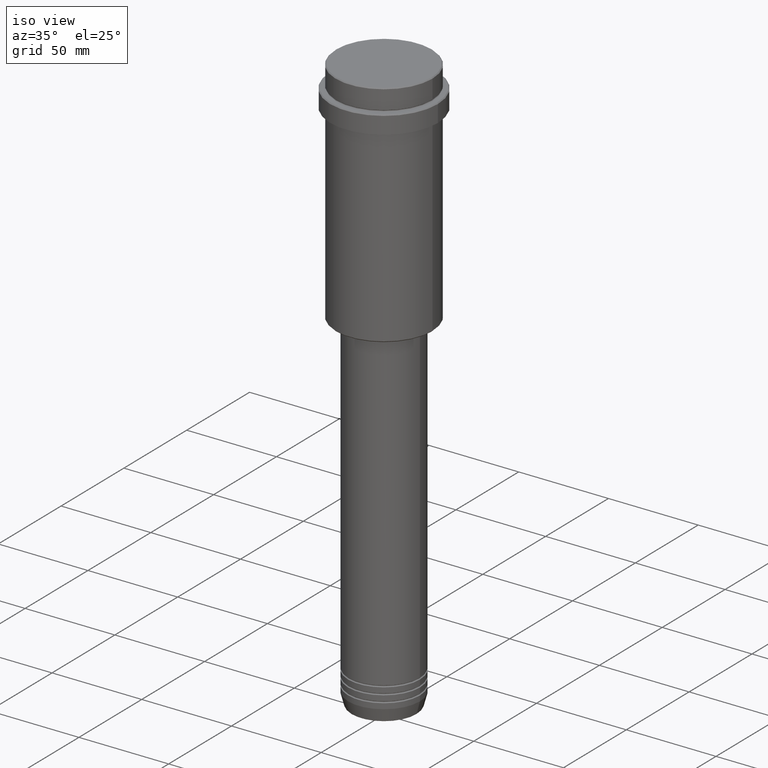
[diagram: clean part render]
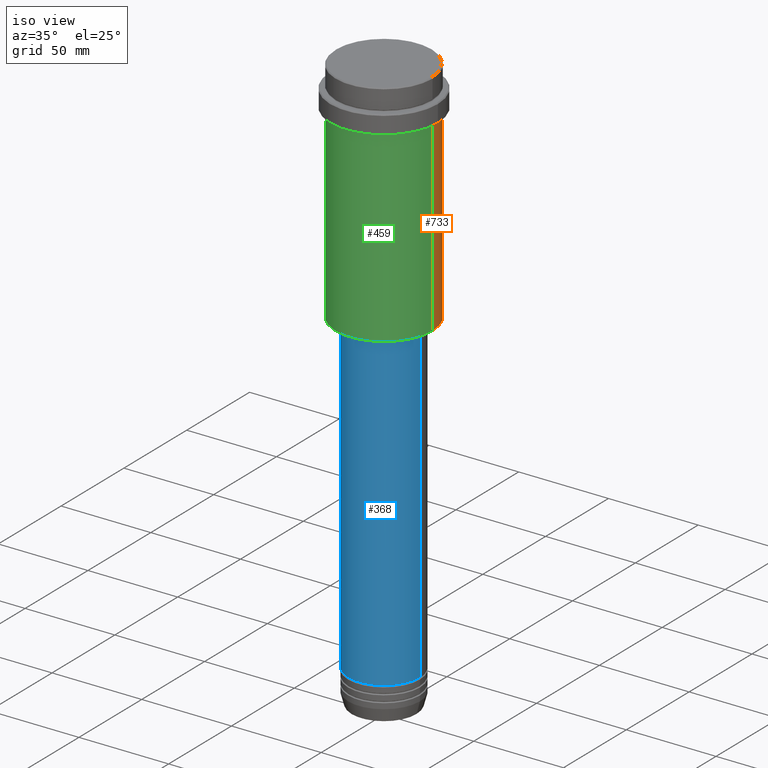
[diagram: same view with three faces highlighted in distinct colors, each labeled with its STEP entity id]
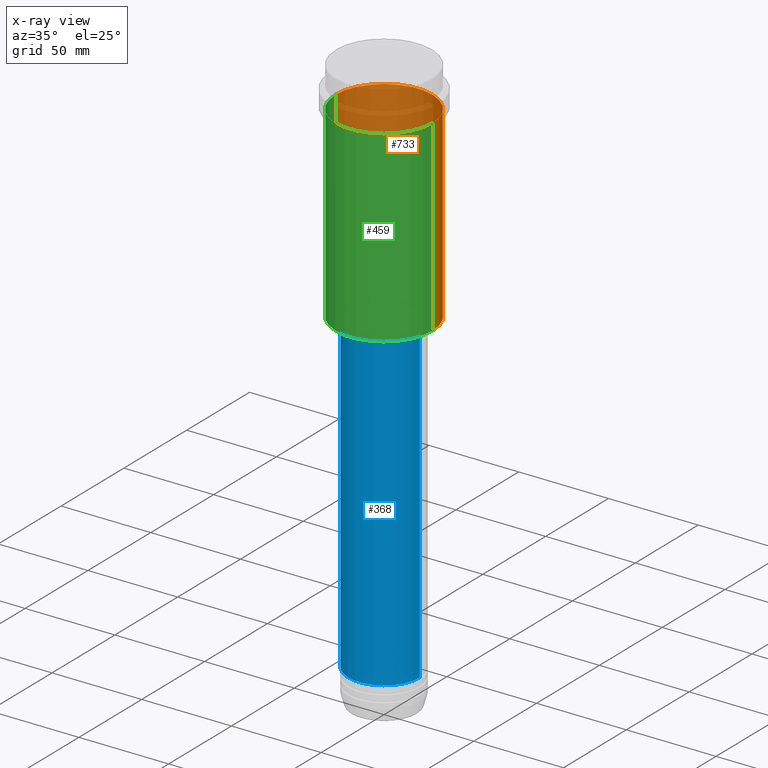
[diagram: x-ray of the same camera — body ghosted, the three highlighted faces saturated]
A machine part, iso view with three faces highlighted in distinct colors.
The next image is the same camera in x-ray (body ghosted, the three faces saturated) — at least one of them is partly hidden behind the body in this view.
Their STEP definitions:

[orange] entity #733 — the highlighted cylindrical surface (partial cylindrical patch) has radius 27 mm, axis along (-0, -0, 1).
#35 = DIRECTION ( 'NONE',  ( -0.000000000000000000, -0.000000000000000000, 1.000000000000000000 ) ) ;
#41 = VERTEX_POINT ( 'NONE', #1177 ) ;
#66 = CARTESIAN_POINT ( 'NONE',  ( 0.000000000000000000, 0.000000000000000000, -127.4999999999999432 ) ) ;
#77 = EDGE_CURVE ( 'NONE', #1106, #41, #509, .T. ) ;
#79 = ORIENTED_EDGE ( 'NONE', *, *, #77, .F. ) ;
#81 = DIRECTION ( 'NONE',  ( -0.000000000000000000, -0.000000000000000000, 1.000000000000000000 ) ) ;
#136 = VECTOR ( 'NONE', #81, 1000.000000000000000 ) ;
#145 = EDGE_CURVE ( 'NONE', #1298, #41, #604, .T. ) ;
#229 = CIRCLE ( 'NONE', #619, 26.99999999999999645 ) ;
#390 = DIRECTION ( 'NONE',  ( -1.000000000000000000, 0.000000000000000000, 0.000000000000000000 ) ) ;
#509 = CIRCLE ( 'NONE', #1259, 26.99999999999999645 ) ;
#587 = AXIS2_PLACEMENT_3D ( 'NONE', #1143, #35, #1245 ) ;
#604 = LINE ( 'NONE', #1059, #136 ) ;
#619 = AXIS2_PLACEMENT_3D ( 'NONE', #66, #1278, #390 ) ;
#713 = EDGE_LOOP ( 'NONE', ( #1108, #980, #79, #848 ) ) ;
#728 = DIRECTION ( 'NONE',  ( 1.000000000000000000, 0.000000000000000000, 0.000000000000000000 ) ) ;
#733 = ADVANCED_FACE ( 'NONE', ( #1023 ), #1250, .T. ) ;
#771 = EDGE_CURVE ( 'NONE', #1310, #1106, #1056, .T. ) ;
#816 = CARTESIAN_POINT ( 'NONE',  ( -26.99999999999999645, 3.306546357697853339E-15, -127.4999999999999432 ) ) ;
#848 = ORIENTED_EDGE ( 'NONE', *, *, #771, .F. ) ;
#859 = VECTOR ( 'NONE', #1039, 1000.000000000000000 ) ;
#902 = CARTESIAN_POINT ( 'NONE',  ( 26.99999999999999645, 0.000000000000000000, -23.00000000000000000 ) ) ;
#941 = CARTESIAN_POINT ( 'NONE',  ( 26.99999999999999645, 0.000000000000000000, 0.000000000000000000 ) ) ;
#980 = ORIENTED_EDGE ( 'NONE', *, *, #145, .T. ) ;
#1023 = FACE_OUTER_BOUND ( 'NONE', #713, .T. ) ;
#1039 = DIRECTION ( 'NONE',  ( -0.000000000000000000, -0.000000000000000000, 1.000000000000000000 ) ) ;
#1054 = CARTESIAN_POINT ( 'NONE',  ( 26.99999999999999645, 0.000000000000000000, -127.4999999999999432 ) ) ;
#1056 = LINE ( 'NONE', #941, #859 ) ;
#1059 = CARTESIAN_POINT ( 'NONE',  ( -26.99999999999999645, 3.306546357697853339E-15, 0.000000000000000000 ) ) ;
#1069 = DIRECTION ( 'NONE',  ( -0.000000000000000000, -0.000000000000000000, 1.000000000000000000 ) ) ;
#1106 = VERTEX_POINT ( 'NONE', #902 ) ;
#1108 = ORIENTED_EDGE ( 'NONE', *, *, #1322, .T. ) ;
#1143 = CARTESIAN_POINT ( 'NONE',  ( 0.000000000000000000, 0.000000000000000000, 0.000000000000000000 ) ) ;
#1177 = CARTESIAN_POINT ( 'NONE',  ( -26.99999999999999645, 3.306546357697853339E-15, -23.00000000000000000 ) ) ;
#1182 = CARTESIAN_POINT ( 'NONE',  ( 0.000000000000000000, 0.000000000000000000, -23.00000000000000000 ) ) ;
#1245 = DIRECTION ( 'NONE',  ( 1.000000000000000000, 0.000000000000000000, 0.000000000000000000 ) ) ;
#1250 = CYLINDRICAL_SURFACE ( 'NONE', #587, 26.99999999999999645 ) ;
#1259 = AXIS2_PLACEMENT_3D ( 'NONE', #1182, #1069, #728 ) ;
#1278 = DIRECTION ( 'NONE',  ( -0.000000000000000000, -0.000000000000000000, 1.000000000000000000 ) ) ;
#1298 = VERTEX_POINT ( 'NONE', #816 ) ;
#1310 = VERTEX_POINT ( 'NONE', #1054 ) ;
#1322 = EDGE_CURVE ( 'NONE', #1310, #1298, #229, .T. ) ;

[blue] entity #368 — the highlighted cylindrical surface (partial cylindrical patch) has radius 20 mm, axis along (-0, -0, 1).
#10 = DIRECTION ( 'NONE',  ( -0.000000000000000000, -0.000000000000000000, 1.000000000000000000 ) ) ;
#25 = ORIENTED_EDGE ( 'NONE', *, *, #523, .T. ) ;
#165 = AXIS2_PLACEMENT_3D ( 'NONE', #400, #10, #874 ) ;
#192 = DIRECTION ( 'NONE',  ( -0.000000000000000000, -0.000000000000000000, 1.000000000000000000 ) ) ;
#205 = DIRECTION ( 'NONE',  ( 1.000000000000000000, 0.000000000000000000, 0.000000000000000000 ) ) ;
#223 = CARTESIAN_POINT ( 'NONE',  ( -19.99999999999999645, 2.449293598294706119E-15, -128.9999999999999147 ) ) ;
#250 = CARTESIAN_POINT ( 'NONE',  ( 19.99999999999999645, 0.000000000000000000, -128.9999999999999147 ) ) ;
#286 = AXIS2_PLACEMENT_3D ( 'NONE', #953, #192, #694 ) ;
#355 = EDGE_CURVE ( 'NONE', #1085, #1224, #755, .T. ) ;
#368 = ADVANCED_FACE ( 'NONE', ( #600 ), #714, .T. ) ;
#400 = CARTESIAN_POINT ( 'NONE',  ( 0.000000000000000000, 0.000000000000000000, -128.9999999999999147 ) ) ;
#421 = ORIENTED_EDGE ( 'NONE', *, *, #355, .T. ) ;
#475 = CIRCLE ( 'NONE', #165, 19.99999999999999645 ) ;
#523 = EDGE_CURVE ( 'NONE', #1224, #734, #1334, .T. ) ;
#538 = CARTESIAN_POINT ( 'NONE',  ( 19.99999999999999645, 0.000000000000000000, 0.000000000000000000 ) ) ;
#600 = FACE_OUTER_BOUND ( 'NONE', #673, .T. ) ;
#631 = ORIENTED_EDGE ( 'NONE', *, *, #1392, .F. ) ;
#668 = CARTESIAN_POINT ( 'NONE',  ( -20.00000000000000000, 2.449293598294706513E-15, -303.9999999999998863 ) ) ;
#673 = EDGE_LOOP ( 'NONE', ( #631, #421, #25, #1062 ) ) ;
#694 = DIRECTION ( 'NONE',  ( 1.000000000000000000, 0.000000000000000000, 0.000000000000000000 ) ) ;
#714 = CYLINDRICAL_SURFACE ( 'NONE', #286, 19.99999999999999645 ) ;
#734 = VERTEX_POINT ( 'NONE', #250 ) ;
#755 = CIRCLE ( 'NONE', #1330, 20.00000000000000000 ) ;
#842 = CARTESIAN_POINT ( 'NONE',  ( 0.000000000000000000, 0.000000000000000000, -303.9999999999998863 ) ) ;
#874 = DIRECTION ( 'NONE',  ( 1.000000000000000000, 0.000000000000000000, 0.000000000000000000 ) ) ;
#919 = VERTEX_POINT ( 'NONE', #223 ) ;
#953 = CARTESIAN_POINT ( 'NONE',  ( 0.000000000000000000, 0.000000000000000000, 0.000000000000000000 ) ) ;
#974 = LINE ( 'NONE', #1412, #1080 ) ;
#1002 = DIRECTION ( 'NONE',  ( -0.000000000000000000, -0.000000000000000000, 1.000000000000000000 ) ) ;
#1062 = ORIENTED_EDGE ( 'NONE', *, *, #1359, .F. ) ;
#1071 = DIRECTION ( 'NONE',  ( -0.000000000000000000, -0.000000000000000000, 1.000000000000000000 ) ) ;
#1080 = VECTOR ( 'NONE', #1294, 1000.000000000000000 ) ;
#1085 = VERTEX_POINT ( 'NONE', #668 ) ;
#1156 = CARTESIAN_POINT ( 'NONE',  ( 20.00000000000000000, 0.000000000000000000, -303.9999999999998863 ) ) ;
#1224 = VERTEX_POINT ( 'NONE', #1156 ) ;
#1243 = VECTOR ( 'NONE', #1002, 1000.000000000000000 ) ;
#1294 = DIRECTION ( 'NONE',  ( -0.000000000000000000, -0.000000000000000000, 1.000000000000000000 ) ) ;
#1330 = AXIS2_PLACEMENT_3D ( 'NONE', #842, #1071, #205 ) ;
#1334 = LINE ( 'NONE', #538, #1243 ) ;
#1359 = EDGE_CURVE ( 'NONE', #919, #734, #475, .T. ) ;
#1392 = EDGE_CURVE ( 'NONE', #1085, #919, #974, .T. ) ;
#1412 = CARTESIAN_POINT ( 'NONE',  ( -19.99999999999999645, 2.449293598294706119E-15, 0.000000000000000000 ) ) ;

[green] entity #459 — the highlighted cylindrical surface (partial cylindrical patch) has radius 27 mm, axis along (-0, -0, 1).
#41 = VERTEX_POINT ( 'NONE', #1177 ) ;
#46 = EDGE_CURVE ( 'NONE', #41, #1106, #822, .T. ) ;
#81 = DIRECTION ( 'NONE',  ( -0.000000000000000000, -0.000000000000000000, 1.000000000000000000 ) ) ;
#106 = CARTESIAN_POINT ( 'NONE',  ( 0.000000000000000000, 0.000000000000000000, 0.000000000000000000 ) ) ;
#136 = VECTOR ( 'NONE', #81, 1000.000000000000000 ) ;
#145 = EDGE_CURVE ( 'NONE', #1298, #41, #604, .T. ) ;
#213 = DIRECTION ( 'NONE',  ( 1.000000000000000000, 0.000000000000000000, 0.000000000000000000 ) ) ;
#299 = EDGE_CURVE ( 'NONE', #1298, #1310, #585, .T. ) ;
#320 = DIRECTION ( 'NONE',  ( -0.000000000000000000, -0.000000000000000000, 1.000000000000000000 ) ) ;
#343 = ORIENTED_EDGE ( 'NONE', *, *, #46, .F. ) ;
#387 = DIRECTION ( 'NONE',  ( -0.000000000000000000, -0.000000000000000000, 1.000000000000000000 ) ) ;
#412 = CYLINDRICAL_SURFACE ( 'NONE', #489, 26.99999999999999645 ) ;
#413 = CARTESIAN_POINT ( 'NONE',  ( 0.000000000000000000, 0.000000000000000000, -23.00000000000000000 ) ) ;
#459 = ADVANCED_FACE ( 'NONE', ( #522 ), #412, .T. ) ;
#489 = AXIS2_PLACEMENT_3D ( 'NONE', #106, #320, #213 ) ;
#522 = FACE_OUTER_BOUND ( 'NONE', #948, .T. ) ;
#585 = CIRCLE ( 'NONE', #1050, 26.99999999999999645 ) ;
#604 = LINE ( 'NONE', #1059, #136 ) ;
#771 = EDGE_CURVE ( 'NONE', #1310, #1106, #1056, .T. ) ;
#816 = CARTESIAN_POINT ( 'NONE',  ( -26.99999999999999645, 3.306546357697853339E-15, -127.4999999999999432 ) ) ;
#822 = CIRCLE ( 'NONE', #1142, 26.99999999999999645 ) ;
#843 = DIRECTION ( 'NONE',  ( 1.000000000000000000, 0.000000000000000000, 0.000000000000000000 ) ) ;
#859 = VECTOR ( 'NONE', #1039, 1000.000000000000000 ) ;
#862 = DIRECTION ( 'NONE',  ( -0.000000000000000000, -0.000000000000000000, 1.000000000000000000 ) ) ;
#884 = ORIENTED_EDGE ( 'NONE', *, *, #299, .T. ) ;
#902 = CARTESIAN_POINT ( 'NONE',  ( 26.99999999999999645, 0.000000000000000000, -23.00000000000000000 ) ) ;
#941 = CARTESIAN_POINT ( 'NONE',  ( 26.99999999999999645, 0.000000000000000000, 0.000000000000000000 ) ) ;
#948 = EDGE_LOOP ( 'NONE', ( #1404, #884, #1020, #343 ) ) ;
#1020 = ORIENTED_EDGE ( 'NONE', *, *, #771, .T. ) ;
#1039 = DIRECTION ( 'NONE',  ( -0.000000000000000000, -0.000000000000000000, 1.000000000000000000 ) ) ;
#1049 = CARTESIAN_POINT ( 'NONE',  ( 0.000000000000000000, 0.000000000000000000, -127.4999999999999432 ) ) ;
#1050 = AXIS2_PLACEMENT_3D ( 'NONE', #1049, #387, #1280 ) ;
#1054 = CARTESIAN_POINT ( 'NONE',  ( 26.99999999999999645, 0.000000000000000000, -127.4999999999999432 ) ) ;
#1056 = LINE ( 'NONE', #941, #859 ) ;
#1059 = CARTESIAN_POINT ( 'NONE',  ( -26.99999999999999645, 3.306546357697853339E-15, 0.000000000000000000 ) ) ;
#1106 = VERTEX_POINT ( 'NONE', #902 ) ;
#1142 = AXIS2_PLACEMENT_3D ( 'NONE', #413, #862, #843 ) ;
#1177 = CARTESIAN_POINT ( 'NONE',  ( -26.99999999999999645, 3.306546357697853339E-15, -23.00000000000000000 ) ) ;
#1280 = DIRECTION ( 'NONE',  ( -1.000000000000000000, 0.000000000000000000, 0.000000000000000000 ) ) ;
#1298 = VERTEX_POINT ( 'NONE', #816 ) ;
#1310 = VERTEX_POINT ( 'NONE', #1054 ) ;
#1404 = ORIENTED_EDGE ( 'NONE', *, *, #145, .F. ) ;